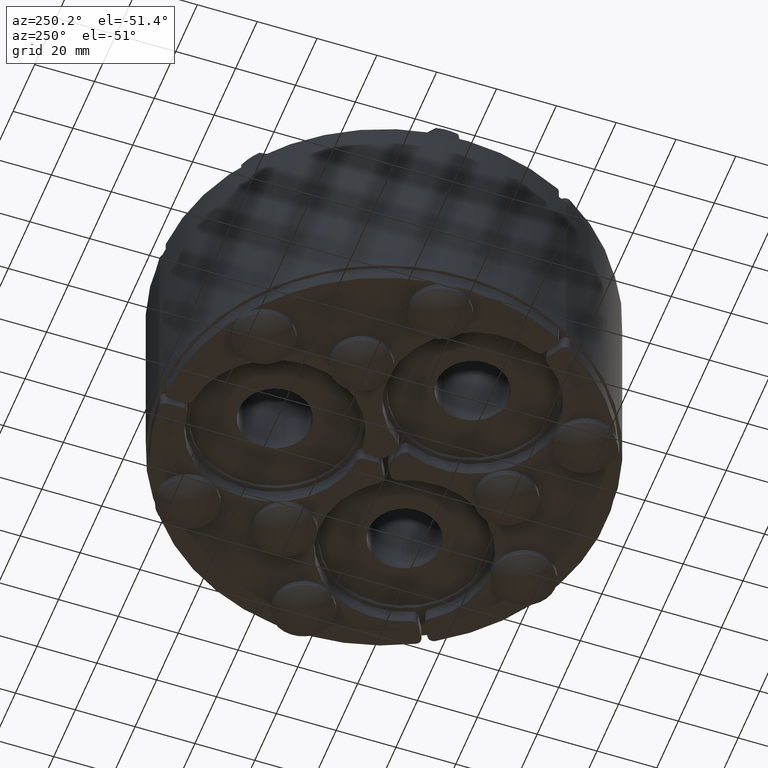
[diagram: clean part render]
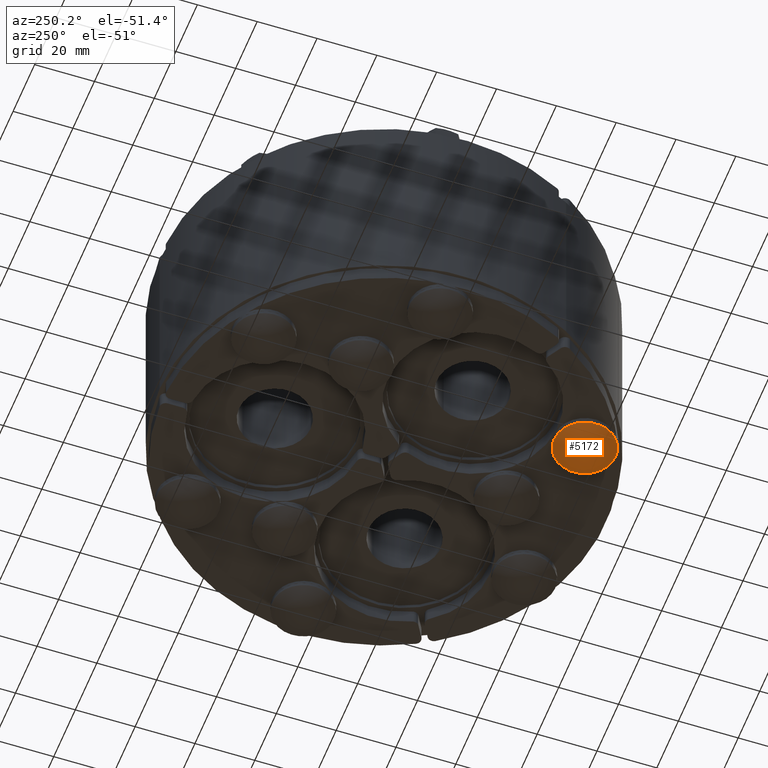
[diagram: same view with one face highlighted and labeled with its STEP entity id]
A machine part, auxiliary view. The second image highlights one B-rep face of the part: STEP entity #5172.
In plain terms, the highlighted spherical surface has radius 16 mm.
Its self-contained STEP definition (entity closure, byte-faithful):
#5156=CARTESIAN_POINT('',(11.120000000000005,0.0,0.0));
#5157=DIRECTION('',(0.0,0.0,1.0));
#5158=DIRECTION('',(1.0,0.0,0.0));
#5159=AXIS2_PLACEMENT_3D('',#5156,#5157,#5158);
#5160=SPHERICAL_SURFACE('',#5159,16.000000000000004);
#5161=CARTESIAN_POINT('',(-1.102699169986955,10.325000000000003,0.0));
#5162=VERTEX_POINT('',#5161);
#5163=CARTESIAN_POINT('',(-1.102699169986963,-1.034504E-033,0.0));
#5164=DIRECTION('',(1.0,0.0,0.0));
#5165=DIRECTION('',(0.0,1.0,0.0));
#5166=AXIS2_PLACEMENT_3D('',#5163,#5164,#5165);
#5167=CIRCLE('',#5166,10.325000000000003);
#5168=EDGE_CURVE('',#5162,#5162,#5167,.T.);
#5169=ORIENTED_EDGE('',*,*,#5168,.F.);
#5170=EDGE_LOOP('',(#5169));
#5171=FACE_OUTER_BOUND('',#5170,.T.);
#5172=ADVANCED_FACE('',(#5171),#5160,.T.);